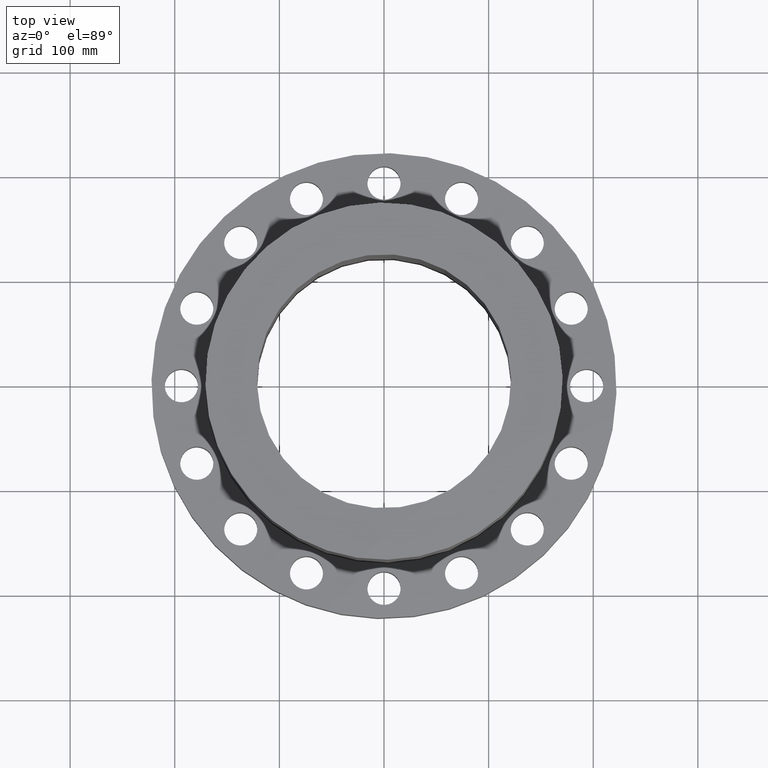
[diagram: clean part render]
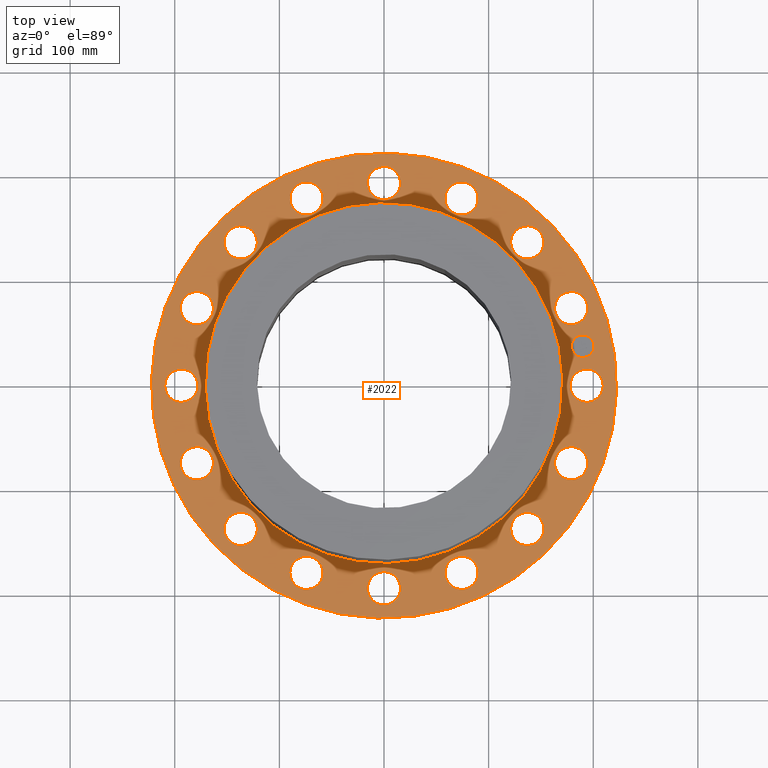
[diagram: same view with one face highlighted and labeled with its STEP entity id]
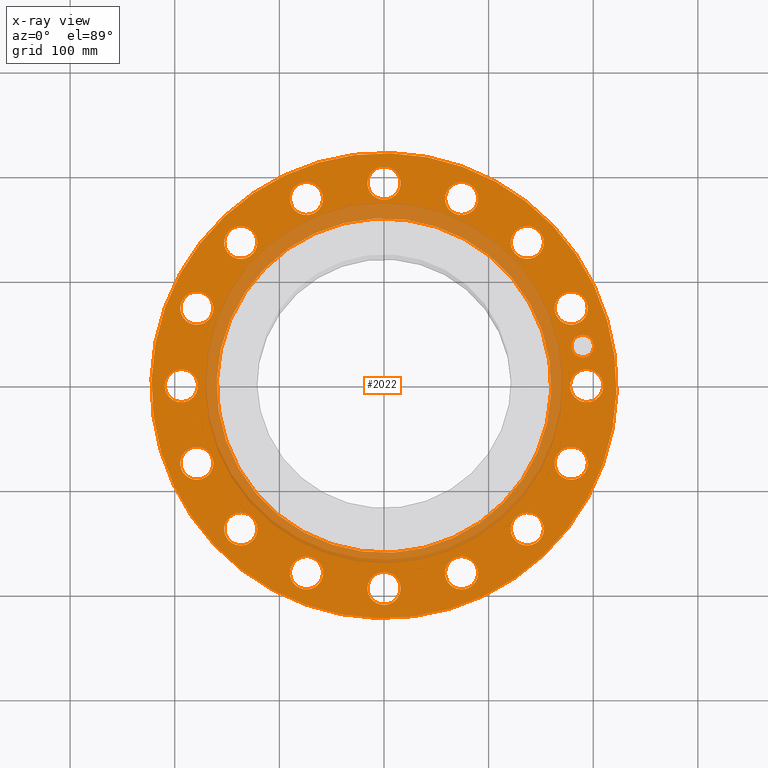
[diagram: x-ray of the same camera — body ghosted, the highlighted face saturated]
A machine part, top view. The second image highlights one B-rep face of the part: STEP entity #2022.
The next image is the same camera in x-ray: the body ghosted, the highlighted face saturated — about 20% of this face is hidden behind the body in this view.
In plain terms, the highlighted planar face has unit normal (0, 0, -1).
Its self-contained STEP definition (entity closure, byte-faithful):
#51=AXIS2_PLACEMENT_3D('Circle Axis2P3D',#49,#50,$) ;
#622=AXIS2_PLACEMENT_3D('Circle Axis2P3D',#620,#621,$) ;
#647=AXIS2_PLACEMENT_3D('Circle Axis2P3D',#645,#646,$) ;
#666=AXIS2_PLACEMENT_3D('Circle Axis2P3D',#664,#665,$) ;
#683=AXIS2_PLACEMENT_3D('Circle Axis2P3D',#681,#682,$) ;
#718=AXIS2_PLACEMENT_3D('Circle Axis2P3D',#716,#717,$) ;
#1281=AXIS2_PLACEMENT_3D('Circle Axis2P3D',#1279,#1280,$) ;
#1300=AXIS2_PLACEMENT_3D('Circle Axis2P3D',#1298,#1299,$) ;
#1325=AXIS2_PLACEMENT_3D('Circle Axis2P3D',#1323,#1324,$) ;
#1344=AXIS2_PLACEMENT_3D('Circle Axis2P3D',#1342,#1343,$) ;
#1369=AXIS2_PLACEMENT_3D('Circle Axis2P3D',#1367,#1368,$) ;
#1388=AXIS2_PLACEMENT_3D('Circle Axis2P3D',#1386,#1387,$) ;
#1413=AXIS2_PLACEMENT_3D('Circle Axis2P3D',#1411,#1412,$) ;
#1432=AXIS2_PLACEMENT_3D('Circle Axis2P3D',#1430,#1431,$) ;
#1457=AXIS2_PLACEMENT_3D('Circle Axis2P3D',#1455,#1456,$) ;
#1476=AXIS2_PLACEMENT_3D('Circle Axis2P3D',#1474,#1475,$) ;
#1501=AXIS2_PLACEMENT_3D('Circle Axis2P3D',#1499,#1500,$) ;
#1520=AXIS2_PLACEMENT_3D('Circle Axis2P3D',#1518,#1519,$) ;
#1545=AXIS2_PLACEMENT_3D('Circle Axis2P3D',#1543,#1544,$) ;
#1564=AXIS2_PLACEMENT_3D('Circle Axis2P3D',#1562,#1563,$) ;
#1589=AXIS2_PLACEMENT_3D('Circle Axis2P3D',#1587,#1588,$) ;
#1608=AXIS2_PLACEMENT_3D('Circle Axis2P3D',#1606,#1607,$) ;
#1633=AXIS2_PLACEMENT_3D('Circle Axis2P3D',#1631,#1632,$) ;
#1652=AXIS2_PLACEMENT_3D('Circle Axis2P3D',#1650,#1651,$) ;
#1677=AXIS2_PLACEMENT_3D('Circle Axis2P3D',#1675,#1676,$) ;
#1696=AXIS2_PLACEMENT_3D('Circle Axis2P3D',#1694,#1695,$) ;
#1721=AXIS2_PLACEMENT_3D('Circle Axis2P3D',#1719,#1720,$) ;
#1740=AXIS2_PLACEMENT_3D('Circle Axis2P3D',#1738,#1739,$) ;
#1765=AXIS2_PLACEMENT_3D('Circle Axis2P3D',#1763,#1764,$) ;
#1784=AXIS2_PLACEMENT_3D('Circle Axis2P3D',#1782,#1783,$) ;
#1809=AXIS2_PLACEMENT_3D('Circle Axis2P3D',#1807,#1808,$) ;
#1828=AXIS2_PLACEMENT_3D('Circle Axis2P3D',#1826,#1827,$) ;
#1853=AXIS2_PLACEMENT_3D('Circle Axis2P3D',#1851,#1852,$) ;
#1872=AXIS2_PLACEMENT_3D('Circle Axis2P3D',#1870,#1871,$) ;
#1897=AXIS2_PLACEMENT_3D('Circle Axis2P3D',#1895,#1896,$) ;
#1916=AXIS2_PLACEMENT_3D('Circle Axis2P3D',#1914,#1915,$) ;
#1930=AXIS2_PLACEMENT_3D('Plane Axis2P3D',#1927,#1928,#1929) ;
#2006=AXIS2_PLACEMENT_3D('Circle Axis2P3D',#2004,#2005,$) ;
#2015=AXIS2_PLACEMENT_3D('Circle Axis2P3D',#2013,#2014,$) ;
#44=CARTESIAN_POINT('Vertex',(7.07651089885,-0.299640961629,2.12000000001)) ;
#49=CARTESIAN_POINT('Axis2P3D Location',(7.62500000003,0.,2.12000000001)) ;
#53=CARTESIAN_POINT('Vertex',(8.17348910121,0.299640961629,2.12000000001)) ;
#620=CARTESIAN_POINT('Axis2P3D Location',(7.62500000003,0.,2.12000000001)) ;
#642=CARTESIAN_POINT('Vertex',(-4.1949734628,-7.67884741657,2.12000000001)) ;
#645=CARTESIAN_POINT('Axis2P3D Location',(0.,0.,2.12000000001)) ;
#649=CARTESIAN_POINT('Vertex',(4.1949734628,7.67884741657,2.12000000001)) ;
#664=CARTESIAN_POINT('Axis2P3D Location',(0.,0.,2.12000000001)) ;
#681=CARTESIAN_POINT('Axis2P3D Location',(0.,0.,2.12000000001)) ;
#685=CARTESIAN_POINT('Vertex',(3.01798376553,5.52438222712,2.12000000001)) ;
#687=CARTESIAN_POINT('Vertex',(-3.01798376553,-5.52438222712,2.12000000001)) ;
#716=CARTESIAN_POINT('Axis2P3D Location',(0.,0.,2.12000000001)) ;
#1276=CARTESIAN_POINT('Vertex',(6.42317594936,-2.98489563149,2.12000000001)) ;
#1279=CARTESIAN_POINT('Axis2P3D Location',(7.04458143543,-2.9179611718,2.12000000001)) ;
#1283=CARTESIAN_POINT('Vertex',(7.66598692149,-2.8510267121,2.12000000001)) ;
#1298=CARTESIAN_POINT('Axis2P3D Location',(7.04458143543,-2.9179611718,2.12000000001)) ;
#1320=CARTESIAN_POINT('Vertex',(4.79197068783,-5.2157269996,2.12000000001)) ;
#1323=CARTESIAN_POINT('Axis2P3D Location',(5.39168920657,-5.39168920657,2.12000000001)) ;
#1327=CARTESIAN_POINT('Vertex',(5.99140772531,-5.56765141353,2.12000000001)) ;
#1342=CARTESIAN_POINT('Axis2P3D Location',(5.39168920657,-5.39168920657,2.12000000001)) ;
#1364=CARTESIAN_POINT('Vertex',(2.43123132839,-6.65251121271,2.12000000001)) ;
#1367=CARTESIAN_POINT('Axis2P3D Location',(2.9179611718,-7.04458143543,2.12000000001)) ;
#1371=CARTESIAN_POINT('Vertex',(3.4046910152,-7.43665165814,2.12000000001)) ;
#1386=CARTESIAN_POINT('Axis2P3D Location',(2.9179611718,-7.04458143543,2.12000000001)) ;
#1408=CARTESIAN_POINT('Vertex',(-0.299640961629,-7.07651089885,2.12000000001)) ;
#1411=CARTESIAN_POINT('Axis2P3D Location',(-6.52068346028E-016,-7.62500000003,2.12000000001)) ;
#1415=CARTESIAN_POINT('Vertex',(0.299640961629,-8.17348910121,2.12000000001)) ;
#1430=CARTESIAN_POINT('Axis2P3D Location',(-6.52068346028E-016,-7.62500000003,2.12000000001)) ;
#1452=CARTESIAN_POINT('Vertex',(-2.98489563149,-6.42317594936,2.12000000001)) ;
#1455=CARTESIAN_POINT('Axis2P3D Location',(-2.9179611718,-7.04458143543,2.12000000001)) ;
#1459=CARTESIAN_POINT('Vertex',(-2.8510267121,-7.66598692149,2.12000000001)) ;
#1474=CARTESIAN_POINT('Axis2P3D Location',(-2.9179611718,-7.04458143543,2.12000000001)) ;
#1496=CARTESIAN_POINT('Vertex',(-5.2157269996,-4.79197068783,2.12000000001)) ;
#1499=CARTESIAN_POINT('Axis2P3D Location',(-5.39168920657,-5.39168920657,2.12000000001)) ;
#1503=CARTESIAN_POINT('Vertex',(-5.56765141353,-5.99140772531,2.12000000001)) ;
#1518=CARTESIAN_POINT('Axis2P3D Location',(-5.39168920657,-5.39168920657,2.12000000001)) ;
#1540=CARTESIAN_POINT('Vertex',(-6.65251121271,-2.43123132839,2.12000000001)) ;
#1543=CARTESIAN_POINT('Axis2P3D Location',(-7.04458143543,-2.9179611718,2.12000000001)) ;
#1547=CARTESIAN_POINT('Vertex',(-7.43665165814,-3.4046910152,2.12000000001)) ;
#1562=CARTESIAN_POINT('Axis2P3D Location',(-7.04458143543,-2.9179611718,2.12000000001)) ;
#1584=CARTESIAN_POINT('Vertex',(-7.07651089885,0.299640961629,2.12000000001)) ;
#1587=CARTESIAN_POINT('Axis2P3D Location',(-7.62500000003,-9.33793184354E-016,2.12000000001)) ;
#1591=CARTESIAN_POINT('Vertex',(-8.17348910121,-0.299640961629,2.12000000001)) ;
#1606=CARTESIAN_POINT('Axis2P3D Location',(-7.62500000003,-9.33793184354E-016,2.12000000001)) ;
#1628=CARTESIAN_POINT('Vertex',(-6.42317594936,2.98489563149,2.12000000001)) ;
#1631=CARTESIAN_POINT('Axis2P3D Location',(-7.04458143543,2.9179611718,2.12000000001)) ;
#1635=CARTESIAN_POINT('Vertex',(-7.66598692149,2.8510267121,2.12000000001)) ;
#1650=CARTESIAN_POINT('Axis2P3D Location',(-7.04458143543,2.9179611718,2.12000000001)) ;
#1672=CARTESIAN_POINT('Vertex',(-4.79197068783,5.2157269996,2.12000000001)) ;
#1675=CARTESIAN_POINT('Axis2P3D Location',(-5.39168920657,5.39168920657,2.12000000001)) ;
#1679=CARTESIAN_POINT('Vertex',(-5.99140772531,5.56765141353,2.12000000001)) ;
#1694=CARTESIAN_POINT('Axis2P3D Location',(-5.39168920657,5.39168920657,2.12000000001)) ;
#1716=CARTESIAN_POINT('Vertex',(-2.43123132839,6.65251121271,2.12000000001)) ;
#1719=CARTESIAN_POINT('Axis2P3D Location',(-2.9179611718,7.04458143543,2.12000000001)) ;
#1723=CARTESIAN_POINT('Vertex',(-3.4046910152,7.43665165814,2.12000000001)) ;
#1738=CARTESIAN_POINT('Axis2P3D Location',(-2.9179611718,7.04458143543,2.12000000001)) ;
#1760=CARTESIAN_POINT('Vertex',(0.299640961629,7.07651089885,2.12000000001)) ;
#1763=CARTESIAN_POINT('Axis2P3D Location',(-1.40068977653E-015,7.62500000003,2.12000000001)) ;
#1767=CARTESIAN_POINT('Vertex',(-0.299640961629,8.17348910121,2.12000000001)) ;
#1782=CARTESIAN_POINT('Axis2P3D Location',(-1.40068977653E-015,7.62500000003,2.12000000001)) ;
#1804=CARTESIAN_POINT('Vertex',(2.98489563149,6.42317594936,2.12000000001)) ;
#1807=CARTESIAN_POINT('Axis2P3D Location',(2.9179611718,7.04458143543,2.12000000001)) ;
#1811=CARTESIAN_POINT('Vertex',(2.8510267121,7.66598692149,2.12000000001)) ;
#1826=CARTESIAN_POINT('Axis2P3D Location',(2.9179611718,7.04458143543,2.12000000001)) ;
#1848=CARTESIAN_POINT('Vertex',(5.2157269996,4.79197068783,2.12000000001)) ;
#1851=CARTESIAN_POINT('Axis2P3D Location',(5.39168920657,5.39168920657,2.12000000001)) ;
#1855=CARTESIAN_POINT('Vertex',(5.56765141353,5.99140772531,2.12000000001)) ;
#1870=CARTESIAN_POINT('Axis2P3D Location',(5.39168920657,5.39168920657,2.12000000001)) ;
#1892=CARTESIAN_POINT('Vertex',(6.65251121271,2.43123132839,2.12000000001)) ;
#1895=CARTESIAN_POINT('Axis2P3D Location',(7.04458143543,2.9179611718,2.12000000001)) ;
#1899=CARTESIAN_POINT('Vertex',(7.43665165814,3.4046910152,2.12000000001)) ;
#1914=CARTESIAN_POINT('Axis2P3D Location',(7.04458143543,2.9179611718,2.12000000001)) ;
#1927=CARTESIAN_POINT('Axis2P3D Location',(0.,8.75000000003,2.12000000001)) ;
#2004=CARTESIAN_POINT('Axis2P3D Location',(7.4784877631,1.48756370538,2.12000000001)) ;
#2008=CARTESIAN_POINT('Vertex',(7.56140114913,1.07072996537,2.12000000001)) ;
#2010=CARTESIAN_POINT('Vertex',(7.39557437708,1.90439744538,2.12000000001)) ;
#2013=CARTESIAN_POINT('Axis2P3D Location',(7.4784877631,1.48756370538,2.12000000001)) ;
#50=DIRECTION('Axis2P3D Direction',(0.,-0.,0.0393700787402)) ;
#621=DIRECTION('Axis2P3D Direction',(0.,-0.,0.0393700787402)) ;
#646=DIRECTION('Axis2P3D Direction',(0.,0.,-0.0393700787402)) ;
#665=DIRECTION('Axis2P3D Direction',(0.,0.,-0.0393700787402)) ;
#682=DIRECTION('Axis2P3D Direction',(0.,0.,-0.0393700787402)) ;
#717=DIRECTION('Axis2P3D Direction',(0.,0.,-0.0393700787402)) ;
#1280=DIRECTION('Axis2P3D Direction',(-0.,0.,0.0393700787402)) ;
#1299=DIRECTION('Axis2P3D Direction',(-0.,0.,0.0393700787402)) ;
#1324=DIRECTION('Axis2P3D Direction',(-0.,0.,0.0393700787402)) ;
#1343=DIRECTION('Axis2P3D Direction',(-0.,0.,0.0393700787402)) ;
#1368=DIRECTION('Axis2P3D Direction',(-0.,0.,0.0393700787402)) ;
#1387=DIRECTION('Axis2P3D Direction',(-0.,0.,0.0393700787402)) ;
#1412=DIRECTION('Axis2P3D Direction',(-0.,0.,0.0393700787402)) ;
#1431=DIRECTION('Axis2P3D Direction',(-0.,0.,0.0393700787402)) ;
#1456=DIRECTION('Axis2P3D Direction',(0.,0.,0.0393700787402)) ;
#1475=DIRECTION('Axis2P3D Direction',(0.,0.,0.0393700787402)) ;
#1500=DIRECTION('Axis2P3D Direction',(0.,0.,0.0393700787402)) ;
#1519=DIRECTION('Axis2P3D Direction',(0.,0.,0.0393700787402)) ;
#1544=DIRECTION('Axis2P3D Direction',(0.,0.,0.0393700787402)) ;
#1563=DIRECTION('Axis2P3D Direction',(0.,0.,0.0393700787402)) ;
#1588=DIRECTION('Axis2P3D Direction',(0.,0.,0.0393700787402)) ;
#1607=DIRECTION('Axis2P3D Direction',(0.,0.,0.0393700787402)) ;
#1632=DIRECTION('Axis2P3D Direction',(0.,0.,0.0393700787402)) ;
#1651=DIRECTION('Axis2P3D Direction',(0.,0.,0.0393700787402)) ;
#1676=DIRECTION('Axis2P3D Direction',(0.,0.,0.0393700787402)) ;
#1695=DIRECTION('Axis2P3D Direction',(0.,0.,0.0393700787402)) ;
#1720=DIRECTION('Axis2P3D Direction',(0.,0.,0.0393700787402)) ;
#1739=DIRECTION('Axis2P3D Direction',(0.,0.,0.0393700787402)) ;
#1764=DIRECTION('Axis2P3D Direction',(0.,0.,0.0393700787402)) ;
#1783=DIRECTION('Axis2P3D Direction',(0.,0.,0.0393700787402)) ;
#1808=DIRECTION('Axis2P3D Direction',(0.,-0.,0.0393700787402)) ;
#1827=DIRECTION('Axis2P3D Direction',(0.,-0.,0.0393700787402)) ;
#1852=DIRECTION('Axis2P3D Direction',(0.,-0.,0.0393700787402)) ;
#1871=DIRECTION('Axis2P3D Direction',(0.,-0.,0.0393700787402)) ;
#1896=DIRECTION('Axis2P3D Direction',(0.,-0.,0.0393700787402)) ;
#1915=DIRECTION('Axis2P3D Direction',(0.,-0.,0.0393700787402)) ;
#1928=DIRECTION('Axis2P3D Direction',(0.,0.,-0.0393700787402)) ;
#1929=DIRECTION('Axis2P3D XDirection',(0.0393700787402,0.,0.)) ;
#2005=DIRECTION('Axis2P3D Direction',(0.,0.,-0.0393700787402)) ;
#2014=DIRECTION('Axis2P3D Direction',(0.,0.,-0.0393700787402)) ;
#1933=ORIENTED_EDGE('',*,*,#668,.F.) ;
#1934=ORIENTED_EDGE('',*,*,#651,.F.) ;
#1937=ORIENTED_EDGE('',*,*,#55,.T.) ;
#1938=ORIENTED_EDGE('',*,*,#624,.T.) ;
#1941=ORIENTED_EDGE('',*,*,#720,.T.) ;
#1942=ORIENTED_EDGE('',*,*,#689,.T.) ;
#1945=ORIENTED_EDGE('',*,*,#1302,.T.) ;
#1946=ORIENTED_EDGE('',*,*,#1285,.T.) ;
#1949=ORIENTED_EDGE('',*,*,#1346,.T.) ;
#1950=ORIENTED_EDGE('',*,*,#1329,.T.) ;
#1953=ORIENTED_EDGE('',*,*,#1390,.T.) ;
#1954=ORIENTED_EDGE('',*,*,#1373,.T.) ;
#1957=ORIENTED_EDGE('',*,*,#1434,.T.) ;
#1958=ORIENTED_EDGE('',*,*,#1417,.T.) ;
#1961=ORIENTED_EDGE('',*,*,#1478,.T.) ;
#1962=ORIENTED_EDGE('',*,*,#1461,.T.) ;
#1965=ORIENTED_EDGE('',*,*,#1522,.T.) ;
#1966=ORIENTED_EDGE('',*,*,#1505,.T.) ;
#1969=ORIENTED_EDGE('',*,*,#1566,.T.) ;
#1970=ORIENTED_EDGE('',*,*,#1549,.T.) ;
#1973=ORIENTED_EDGE('',*,*,#1610,.T.) ;
#1974=ORIENTED_EDGE('',*,*,#1593,.T.) ;
#1977=ORIENTED_EDGE('',*,*,#1654,.T.) ;
#1978=ORIENTED_EDGE('',*,*,#1637,.T.) ;
#1981=ORIENTED_EDGE('',*,*,#1698,.T.) ;
#1982=ORIENTED_EDGE('',*,*,#1681,.T.) ;
#1985=ORIENTED_EDGE('',*,*,#1742,.T.) ;
#1986=ORIENTED_EDGE('',*,*,#1725,.T.) ;
#1989=ORIENTED_EDGE('',*,*,#1786,.T.) ;
#1990=ORIENTED_EDGE('',*,*,#1769,.T.) ;
#1993=ORIENTED_EDGE('',*,*,#1830,.T.) ;
#1994=ORIENTED_EDGE('',*,*,#1813,.T.) ;
#1997=ORIENTED_EDGE('',*,*,#1874,.T.) ;
#1998=ORIENTED_EDGE('',*,*,#1857,.T.) ;
#2001=ORIENTED_EDGE('',*,*,#1918,.T.) ;
#2002=ORIENTED_EDGE('',*,*,#1901,.T.) ;
#2019=ORIENTED_EDGE('',*,*,#2012,.F.) ;
#2020=ORIENTED_EDGE('',*,*,#2017,.F.) ;
#1939=FACE_BOUND('',#1936,.T.) ;
#1943=FACE_BOUND('',#1940,.T.) ;
#1947=FACE_BOUND('',#1944,.T.) ;
#1951=FACE_BOUND('',#1948,.T.) ;
#1955=FACE_BOUND('',#1952,.T.) ;
#1959=FACE_BOUND('',#1956,.T.) ;
#1963=FACE_BOUND('',#1960,.T.) ;
#1967=FACE_BOUND('',#1964,.T.) ;
#1971=FACE_BOUND('',#1968,.T.) ;
#1975=FACE_BOUND('',#1972,.T.) ;
#1979=FACE_BOUND('',#1976,.T.) ;
#1983=FACE_BOUND('',#1980,.T.) ;
#1987=FACE_BOUND('',#1984,.T.) ;
#1991=FACE_BOUND('',#1988,.T.) ;
#1995=FACE_BOUND('',#1992,.T.) ;
#1999=FACE_BOUND('',#1996,.T.) ;
#2003=FACE_BOUND('',#2000,.T.) ;
#2021=FACE_BOUND('',#2018,.T.) ;
#2022=ADVANCED_FACE('PartBody',(#1935,#1939,#1943,#1947,#1951,#1955,#1959,#1963,#1967,#1971,#1975,#1979,#1983,#1987,#1991,#1995,#1999,#2003,#2021),#1931,.F.) ;
#52=CIRCLE('generated circle',#51,0.625000000002) ;
#623=CIRCLE('generated circle',#622,0.625000000002) ;
#648=CIRCLE('generated circle',#647,8.75000000003) ;
#667=CIRCLE('generated circle',#666,8.75000000003) ;
#684=CIRCLE('generated circle',#683,6.29500000003) ;
#719=CIRCLE('generated circle',#718,6.29500000003) ;
#1282=CIRCLE('generated circle',#1281,0.625000000003) ;
#1301=CIRCLE('generated circle',#1300,0.625000000003) ;
#1326=CIRCLE('generated circle',#1325,0.625000000002) ;
#1345=CIRCLE('generated circle',#1344,0.625000000002) ;
#1370=CIRCLE('generated circle',#1369,0.625000000003) ;
#1389=CIRCLE('generated circle',#1388,0.625000000003) ;
#1414=CIRCLE('generated circle',#1413,0.625000000002) ;
#1433=CIRCLE('generated circle',#1432,0.625000000002) ;
#1458=CIRCLE('generated circle',#1457,0.625000000003) ;
#1477=CIRCLE('generated circle',#1476,0.625000000003) ;
#1502=CIRCLE('generated circle',#1501,0.625000000002) ;
#1521=CIRCLE('generated circle',#1520,0.625000000002) ;
#1546=CIRCLE('generated circle',#1545,0.625000000003) ;
#1565=CIRCLE('generated circle',#1564,0.625000000003) ;
#1590=CIRCLE('generated circle',#1589,0.625000000002) ;
#1609=CIRCLE('generated circle',#1608,0.625000000002) ;
#1634=CIRCLE('generated circle',#1633,0.625000000003) ;
#1653=CIRCLE('generated circle',#1652,0.625000000003) ;
#1678=CIRCLE('generated circle',#1677,0.625000000002) ;
#1697=CIRCLE('generated circle',#1696,0.625000000002) ;
#1722=CIRCLE('generated circle',#1721,0.625000000003) ;
#1741=CIRCLE('generated circle',#1740,0.625000000003) ;
#1766=CIRCLE('generated circle',#1765,0.625000000002) ;
#1785=CIRCLE('generated circle',#1784,0.625000000002) ;
#1810=CIRCLE('generated circle',#1809,0.625000000003) ;
#1829=CIRCLE('generated circle',#1828,0.625000000003) ;
#1854=CIRCLE('generated circle',#1853,0.625000000002) ;
#1873=CIRCLE('generated circle',#1872,0.625000000002) ;
#1898=CIRCLE('generated circle',#1897,0.625000000003) ;
#1917=CIRCLE('generated circle',#1916,0.625000000003) ;
#2007=CIRCLE('generated circle',#2006,0.424999995752) ;
#2016=CIRCLE('generated circle',#2015,0.424999995752) ;
#55=EDGE_CURVE('',#54,#45,#52,.F.) ;
#624=EDGE_CURVE('',#45,#54,#623,.F.) ;
#651=EDGE_CURVE('',#643,#650,#648,.T.) ;
#668=EDGE_CURVE('',#650,#643,#667,.T.) ;
#689=EDGE_CURVE('',#686,#688,#684,.T.) ;
#720=EDGE_CURVE('',#688,#686,#719,.T.) ;
#1285=EDGE_CURVE('',#1284,#1277,#1282,.F.) ;
#1302=EDGE_CURVE('',#1277,#1284,#1301,.F.) ;
#1329=EDGE_CURVE('',#1328,#1321,#1326,.F.) ;
#1346=EDGE_CURVE('',#1321,#1328,#1345,.F.) ;
#1373=EDGE_CURVE('',#1372,#1365,#1370,.F.) ;
#1390=EDGE_CURVE('',#1365,#1372,#1389,.F.) ;
#1417=EDGE_CURVE('',#1416,#1409,#1414,.F.) ;
#1434=EDGE_CURVE('',#1409,#1416,#1433,.F.) ;
#1461=EDGE_CURVE('',#1460,#1453,#1458,.F.) ;
#1478=EDGE_CURVE('',#1453,#1460,#1477,.F.) ;
#1505=EDGE_CURVE('',#1504,#1497,#1502,.F.) ;
#1522=EDGE_CURVE('',#1497,#1504,#1521,.F.) ;
#1549=EDGE_CURVE('',#1548,#1541,#1546,.F.) ;
#1566=EDGE_CURVE('',#1541,#1548,#1565,.F.) ;
#1593=EDGE_CURVE('',#1592,#1585,#1590,.F.) ;
#1610=EDGE_CURVE('',#1585,#1592,#1609,.F.) ;
#1637=EDGE_CURVE('',#1636,#1629,#1634,.F.) ;
#1654=EDGE_CURVE('',#1629,#1636,#1653,.F.) ;
#1681=EDGE_CURVE('',#1680,#1673,#1678,.F.) ;
#1698=EDGE_CURVE('',#1673,#1680,#1697,.F.) ;
#1725=EDGE_CURVE('',#1724,#1717,#1722,.F.) ;
#1742=EDGE_CURVE('',#1717,#1724,#1741,.F.) ;
#1769=EDGE_CURVE('',#1768,#1761,#1766,.F.) ;
#1786=EDGE_CURVE('',#1761,#1768,#1785,.F.) ;
#1813=EDGE_CURVE('',#1812,#1805,#1810,.F.) ;
#1830=EDGE_CURVE('',#1805,#1812,#1829,.F.) ;
#1857=EDGE_CURVE('',#1856,#1849,#1854,.F.) ;
#1874=EDGE_CURVE('',#1849,#1856,#1873,.F.) ;
#1901=EDGE_CURVE('',#1900,#1893,#1898,.F.) ;
#1918=EDGE_CURVE('',#1893,#1900,#1917,.F.) ;
#2012=EDGE_CURVE('',#2009,#2011,#2007,.F.) ;
#2017=EDGE_CURVE('',#2011,#2009,#2016,.F.) ;
#1932=EDGE_LOOP('',(#1933,#1934)) ;
#1936=EDGE_LOOP('',(#1937,#1938)) ;
#1940=EDGE_LOOP('',(#1941,#1942)) ;
#1944=EDGE_LOOP('',(#1945,#1946)) ;
#1948=EDGE_LOOP('',(#1949,#1950)) ;
#1952=EDGE_LOOP('',(#1953,#1954)) ;
#1956=EDGE_LOOP('',(#1957,#1958)) ;
#1960=EDGE_LOOP('',(#1961,#1962)) ;
#1964=EDGE_LOOP('',(#1965,#1966)) ;
#1968=EDGE_LOOP('',(#1969,#1970)) ;
#1972=EDGE_LOOP('',(#1973,#1974)) ;
#1976=EDGE_LOOP('',(#1977,#1978)) ;
#1980=EDGE_LOOP('',(#1981,#1982)) ;
#1984=EDGE_LOOP('',(#1985,#1986)) ;
#1988=EDGE_LOOP('',(#1989,#1990)) ;
#1992=EDGE_LOOP('',(#1993,#1994)) ;
#1996=EDGE_LOOP('',(#1997,#1998)) ;
#2000=EDGE_LOOP('',(#2001,#2002)) ;
#2018=EDGE_LOOP('',(#2019,#2020)) ;
#1935=FACE_OUTER_BOUND('',#1932,.T.) ;
#1931=PLANE('',#1930) ;
#45=VERTEX_POINT('',#44) ;
#54=VERTEX_POINT('',#53) ;
#643=VERTEX_POINT('',#642) ;
#650=VERTEX_POINT('',#649) ;
#686=VERTEX_POINT('',#685) ;
#688=VERTEX_POINT('',#687) ;
#1277=VERTEX_POINT('',#1276) ;
#1284=VERTEX_POINT('',#1283) ;
#1321=VERTEX_POINT('',#1320) ;
#1328=VERTEX_POINT('',#1327) ;
#1365=VERTEX_POINT('',#1364) ;
#1372=VERTEX_POINT('',#1371) ;
#1409=VERTEX_POINT('',#1408) ;
#1416=VERTEX_POINT('',#1415) ;
#1453=VERTEX_POINT('',#1452) ;
#1460=VERTEX_POINT('',#1459) ;
#1497=VERTEX_POINT('',#1496) ;
#1504=VERTEX_POINT('',#1503) ;
#1541=VERTEX_POINT('',#1540) ;
#1548=VERTEX_POINT('',#1547) ;
#1585=VERTEX_POINT('',#1584) ;
#1592=VERTEX_POINT('',#1591) ;
#1629=VERTEX_POINT('',#1628) ;
#1636=VERTEX_POINT('',#1635) ;
#1673=VERTEX_POINT('',#1672) ;
#1680=VERTEX_POINT('',#1679) ;
#1717=VERTEX_POINT('',#1716) ;
#1724=VERTEX_POINT('',#1723) ;
#1761=VERTEX_POINT('',#1760) ;
#1768=VERTEX_POINT('',#1767) ;
#1805=VERTEX_POINT('',#1804) ;
#1812=VERTEX_POINT('',#1811) ;
#1849=VERTEX_POINT('',#1848) ;
#1856=VERTEX_POINT('',#1855) ;
#1893=VERTEX_POINT('',#1892) ;
#1900=VERTEX_POINT('',#1899) ;
#2009=VERTEX_POINT('',#2008) ;
#2011=VERTEX_POINT('',#2010) ;